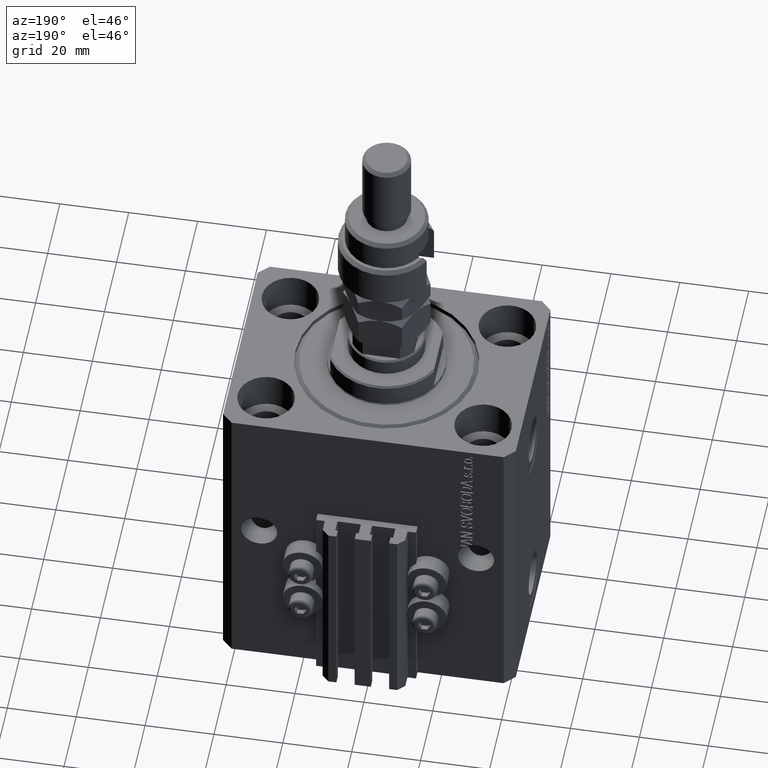
[diagram: clean part render]
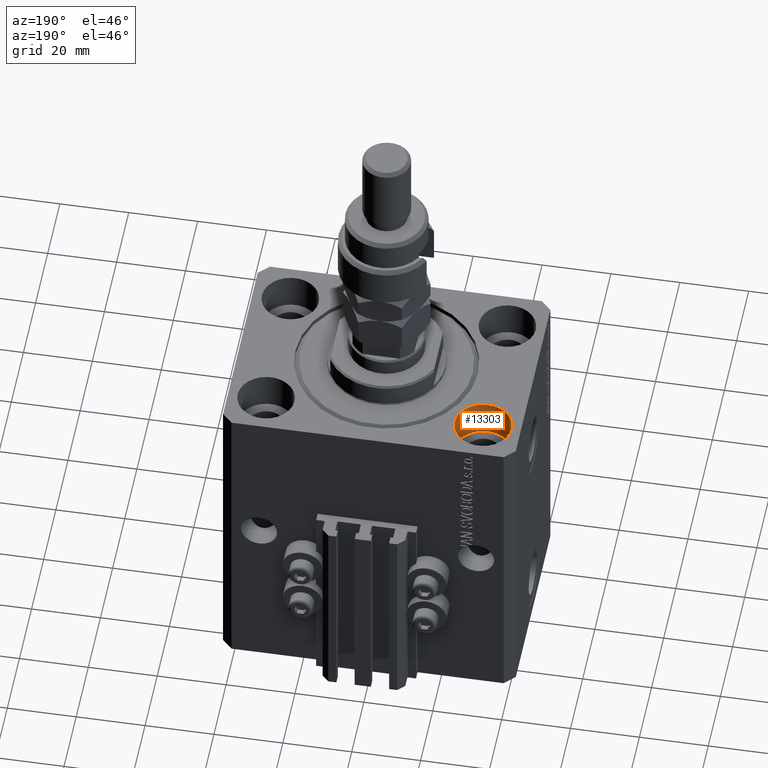
[diagram: same view with one face highlighted and labeled with its STEP entity id]
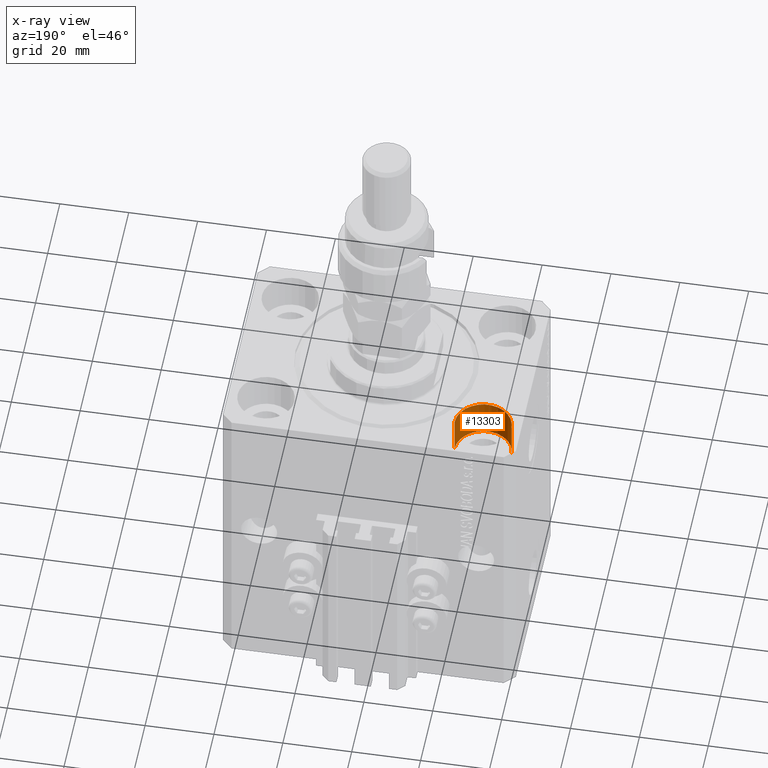
[diagram: x-ray of the same camera — body ghosted, the highlighted face saturated]
A machine part, auxiliary view. The second image highlights one B-rep face of the part: STEP entity #13303.
The next image is the same camera in x-ray: the body ghosted, the highlighted face saturated — about 0% of this face is hidden behind the body in this view.
In plain terms, the highlighted cylindrical surface (edge-blend (fillet) strip) has radius 8.25 mm, axis along (0, 0, 1).
Its self-contained STEP definition (entity closure, byte-faithful):
#274 = VECTOR ( 'NONE', #31547, 1000.000000000000000 ) ;
#1130 = ORIENTED_EDGE ( 'NONE', *, *, #39447, .F. ) ;
#1873 = CARTESIAN_POINT ( 'NONE',  ( -23.25000000000000000, 20.00000000000000000, 0.000000000000000000 ) ) ;
#1909 = CARTESIAN_POINT ( 'NONE',  ( -23.25000000000000000, 20.00000000000000000, -11.00000000000000000 ) ) ;
#2116 = CARTESIAN_POINT ( 'NONE',  ( -39.75000000000000000, 20.00000000000000000, -11.00000000000000000 ) ) ;
#3538 = DIRECTION ( 'NONE',  ( 1.000000000000000000, 0.000000000000000000, 0.000000000000000000 ) ) ;
#4218 = AXIS2_PLACEMENT_3D ( 'NONE', #19566, #26711, #3538 ) ;
#5771 = VECTOR ( 'NONE', #38641, 1000.000000000000000 ) ;
#7495 = AXIS2_PLACEMENT_3D ( 'NONE', #18820, #14488, #45857 ) ;
#8264 = ORIENTED_EDGE ( 'NONE', *, *, #39846, .F. ) ;
#9259 = CARTESIAN_POINT ( 'NONE',  ( -31.50000000000000000, 20.00000000000000000, -11.00000000000000000 ) ) ;
#10065 = LINE ( 'NONE', #1909, #274 ) ;
#13077 = DIRECTION ( 'NONE',  ( 0.000000000000000000, 0.000000000000000000, 1.000000000000000000 ) ) ;
#13303 = ADVANCED_FACE ( 'NONE', ( #49935 ), #26468, .F. ) ;
#14488 = DIRECTION ( 'NONE',  ( -0.000000000000000000, -0.000000000000000000, 1.000000000000000000 ) ) ;
#14549 = CARTESIAN_POINT ( 'NONE',  ( -39.75000000000000000, 20.00000000000000000, 0.000000000000000000 ) ) ;
#14787 = CIRCLE ( 'NONE', #4218, 8.250000000000000000 ) ;
#18238 = ORIENTED_EDGE ( 'NONE', *, *, #30501, .T. ) ;
#18820 = CARTESIAN_POINT ( 'NONE',  ( -31.50000000000000000, 20.00000000000000000, -11.00000000000000000 ) ) ;
#19566 = CARTESIAN_POINT ( 'NONE',  ( -31.50000000000000000, 20.00000000000000000, 0.000000000000000000 ) ) ;
#21454 = DIRECTION ( 'NONE',  ( 1.000000000000000000, 0.000000000000000000, 0.000000000000000000 ) ) ;
#23101 = LINE ( 'NONE', #34825, #5771 ) ;
#23328 = VERTEX_POINT ( 'NONE', #14549 ) ;
#26468 = CYLINDRICAL_SURFACE ( 'NONE', #7495, 8.250000000000000000 ) ;
#26711 = DIRECTION ( 'NONE',  ( 0.000000000000000000, 0.000000000000000000, 1.000000000000000000 ) ) ;
#28745 = CIRCLE ( 'NONE', #39355, 8.250000000000000000 ) ;
#30501 = EDGE_CURVE ( 'NONE', #42120, #23328, #23101, .T. ) ;
#31162 = VERTEX_POINT ( 'NONE', #42868 ) ;
#31547 = DIRECTION ( 'NONE',  ( -0.000000000000000000, -0.000000000000000000, 1.000000000000000000 ) ) ;
#32654 = EDGE_CURVE ( 'NONE', #23328, #35748, #14787, .T. ) ;
#33685 = ORIENTED_EDGE ( 'NONE', *, *, #32654, .T. ) ;
#34825 = CARTESIAN_POINT ( 'NONE',  ( -39.75000000000000000, 20.00000000000000000, -11.00000000000000000 ) ) ;
#35748 = VERTEX_POINT ( 'NONE', #1873 ) ;
#36442 = EDGE_LOOP ( 'NONE', ( #8264, #18238, #33685, #1130 ) ) ;
#38641 = DIRECTION ( 'NONE',  ( -0.000000000000000000, -0.000000000000000000, 1.000000000000000000 ) ) ;
#39355 = AXIS2_PLACEMENT_3D ( 'NONE', #9259, #13077, #21454 ) ;
#39447 = EDGE_CURVE ( 'NONE', #31162, #35748, #10065, .T. ) ;
#39846 = EDGE_CURVE ( 'NONE', #42120, #31162, #28745, .T. ) ;
#42120 = VERTEX_POINT ( 'NONE', #2116 ) ;
#42868 = CARTESIAN_POINT ( 'NONE',  ( -23.25000000000000000, 20.00000000000000000, -11.00000000000000000 ) ) ;
#45857 = DIRECTION ( 'NONE',  ( 1.000000000000000000, 0.000000000000000000, 0.000000000000000000 ) ) ;
#49935 = FACE_OUTER_BOUND ( 'NONE', #36442, .T. ) ;